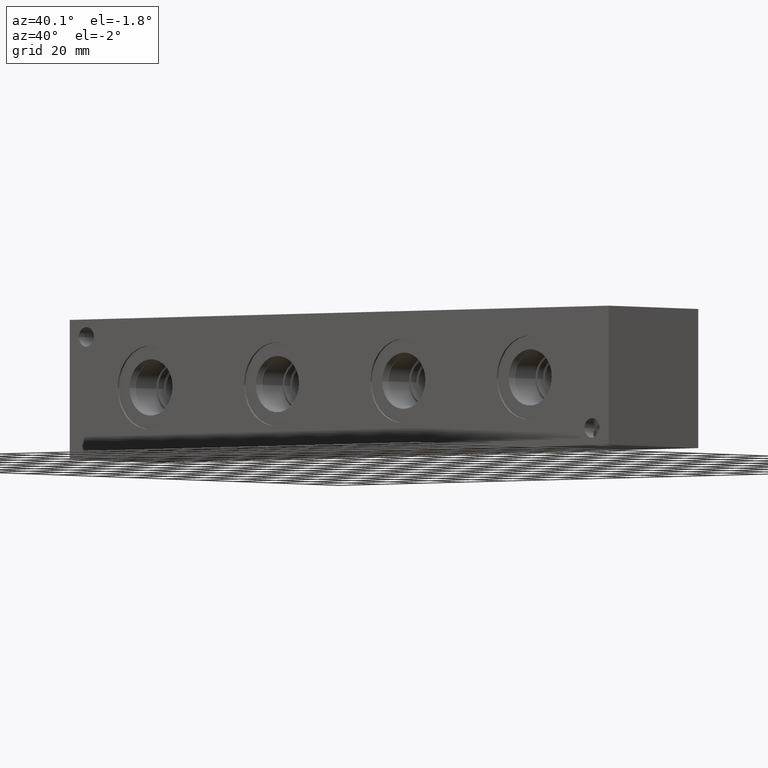
[diagram: clean part render]
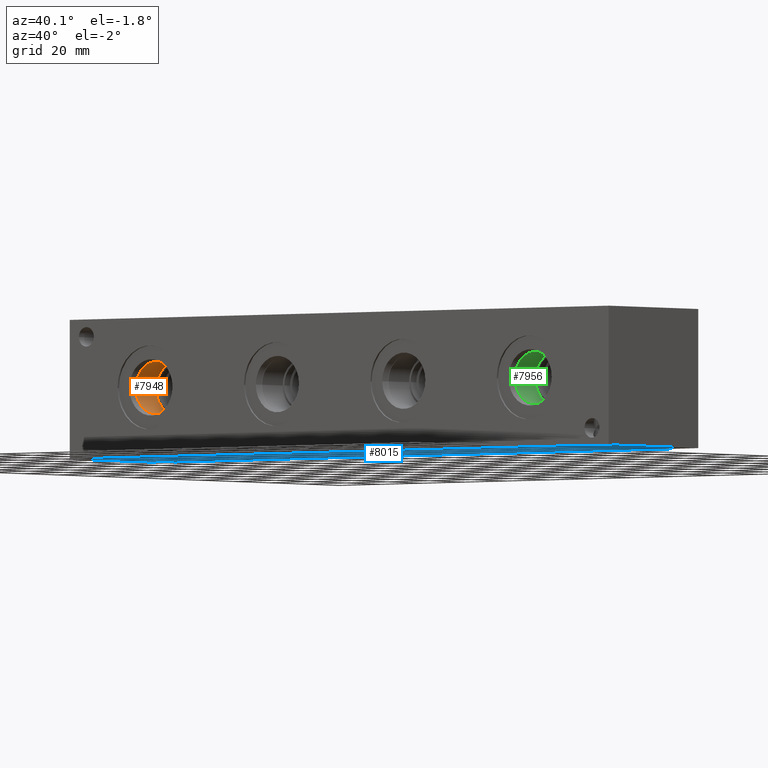
[diagram: same view with three faces highlighted in distinct colors, each labeled with its STEP entity id]
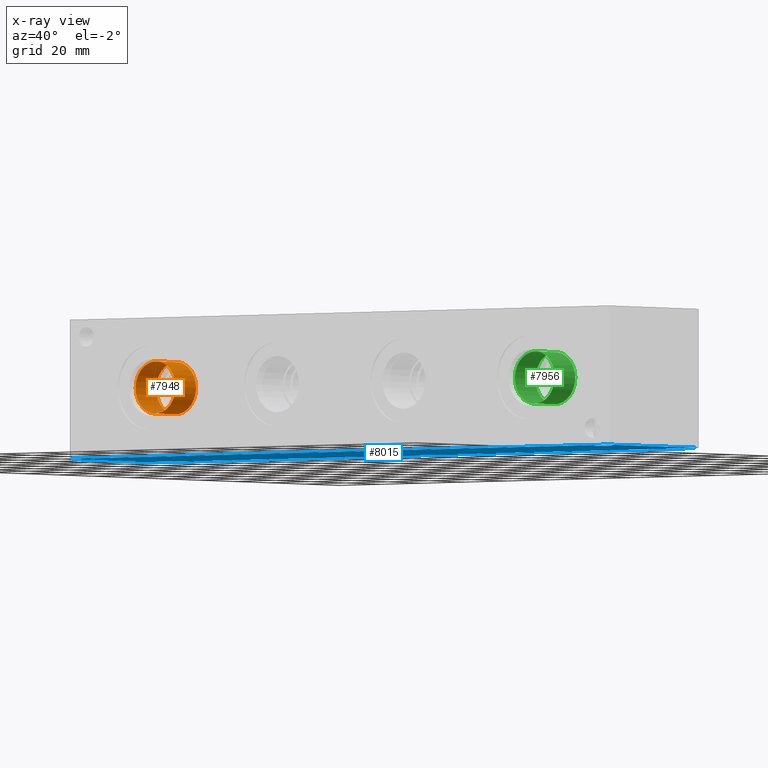
[diagram: x-ray of the same camera — body ghosted, the three highlighted faces saturated]
A machine part, auxiliary view with three faces highlighted in distinct colors.
The next image is the same camera in x-ray (body ghosted, the three faces saturated) — at least one of them is partly hidden behind the body in this view.
Their STEP definitions:

[orange] entity #7948 — the highlighted cylindrical surface (bore or boss wall) has radius 9.525 mm, axis along (0, -1, 0).
#79=CYLINDRICAL_SURFACE('',#8341,9.525);
#179=CIRCLE('',#8339,9.525);
#180=CIRCLE('',#8340,9.525);
#181=CIRCLE('',#8342,9.525);
#903=FACE_OUTER_BOUND('',#1361,.T.);
#1361=EDGE_LOOP('',(#6820,#6821,#6822,#6823,#6824));
#2094=LINE('',#13755,#2787);
#2787=VECTOR('',#9780,9.525);
#3735=VERTEX_POINT('',#13748);
#3736=VERTEX_POINT('',#13749);
#3737=VERTEX_POINT('',#13753);
#4791=EDGE_CURVE('',#3735,#3736,#179,.T.);
#4792=EDGE_CURVE('',#3736,#3735,#180,.T.);
#4793=EDGE_CURVE('',#3737,#3737,#181,.T.);
#4794=EDGE_CURVE('',#3737,#3736,#2094,.T.);
#6820=ORIENTED_EDGE('',*,*,#4793,.F.);
#6821=ORIENTED_EDGE('',*,*,#4794,.T.);
#6822=ORIENTED_EDGE('',*,*,#4791,.F.);
#6823=ORIENTED_EDGE('',*,*,#4792,.F.);
#6824=ORIENTED_EDGE('',*,*,#4794,.F.);
#7948=ADVANCED_FACE('',(#903),#79,.F.);
#8339=AXIS2_PLACEMENT_3D('',#13750,#9772,#9773);
#8340=AXIS2_PLACEMENT_3D('',#13751,#9774,#9775);
#8341=AXIS2_PLACEMENT_3D('',#13752,#9776,#9777);
#8342=AXIS2_PLACEMENT_3D('',#13754,#9778,#9779);
#9772=DIRECTION('center_axis',(0.,-1.,0.));
#9773=DIRECTION('ref_axis',(1.,0.,0.));
#9774=DIRECTION('center_axis',(0.,-1.,0.));
#9775=DIRECTION('ref_axis',(1.,0.,0.));
#9776=DIRECTION('center_axis',(0.,-1.,0.));
#9777=DIRECTION('ref_axis',(1.,0.,0.));
#9778=DIRECTION('center_axis',(0.,1.,0.));
#9779=DIRECTION('ref_axis',(1.,0.,0.));
#9780=DIRECTION('',(0.,1.,0.));
#13748=CARTESIAN_POINT('',(47.625,15.0622,25.4));
#13749=CARTESIAN_POINT('',(28.575,15.0622,25.4));
#13750=CARTESIAN_POINT('Origin',(38.1,15.0622,25.4));
#13751=CARTESIAN_POINT('Origin',(38.1,15.0622,25.4));
#13752=CARTESIAN_POINT('Origin',(38.1,7.5311,25.4));
#13753=CARTESIAN_POINT('',(28.575,3.4036,25.4));
#13754=CARTESIAN_POINT('Origin',(38.1,3.4036,25.4));
#13755=CARTESIAN_POINT('',(28.575,7.5311,25.4));

[blue] entity #8015 — the highlighted planar face has unit normal (0, 0, 1).
#268=CIRCLE('',#8499,3.5687);
#269=CIRCLE('',#8501,3.5687);
#330=FACE_BOUND('',#1448,.T.);
#331=FACE_BOUND('',#1449,.T.);
#553=PLANE('',#8507);
#970=FACE_OUTER_BOUND('',#1447,.T.);
#1447=EDGE_LOOP('',(#7173,#7174,#7175,#7176));
#1448=EDGE_LOOP('',(#7177));
#1449=EDGE_LOOP('',(#7178));
#2135=LINE('',#14060,#2828);
#2138=LINE('',#14065,#2831);
#2140=LINE('',#14069,#2833);
#2142=LINE('',#14072,#2835);
#2828=VECTOR('',#10141,10.);
#2831=VECTOR('',#10146,10.);
#2833=VECTOR('',#10150,10.);
#2835=VECTOR('',#10154,10.);
#3822=VERTEX_POINT('',#14050);
#3823=VERTEX_POINT('',#14054);
#3824=VERTEX_POINT('',#14058);
#3825=VERTEX_POINT('',#14059);
#3826=VERTEX_POINT('',#14064);
#3827=VERTEX_POINT('',#14068);
#4934=EDGE_CURVE('',#3822,#3822,#268,.T.);
#4936=EDGE_CURVE('',#3823,#3823,#269,.T.);
#4937=EDGE_CURVE('',#3824,#3825,#2135,.T.);
#4940=EDGE_CURVE('',#3826,#3824,#2138,.T.);
#4942=EDGE_CURVE('',#3827,#3826,#2140,.T.);
#4944=EDGE_CURVE('',#3825,#3827,#2142,.T.);
#7173=ORIENTED_EDGE('',*,*,#4944,.F.);
#7174=ORIENTED_EDGE('',*,*,#4937,.F.);
#7175=ORIENTED_EDGE('',*,*,#4940,.F.);
#7176=ORIENTED_EDGE('',*,*,#4942,.F.);
#7177=ORIENTED_EDGE('',*,*,#4934,.T.);
#7178=ORIENTED_EDGE('',*,*,#4936,.T.);
#8015=ADVANCED_FACE('',(#970,#330,#331),#553,.F.);
#8499=AXIS2_PLACEMENT_3D('',#14052,#10132,#10133);
#8501=AXIS2_PLACEMENT_3D('',#14056,#10137,#10138);
#8507=AXIS2_PLACEMENT_3D('',#14074,#10157,#10158);
#10132=DIRECTION('center_axis',(0.,0.,1.));
#10133=DIRECTION('ref_axis',(1.,0.,0.));
#10137=DIRECTION('center_axis',(0.,0.,1.));
#10138=DIRECTION('ref_axis',(1.,0.,0.));
#10141=DIRECTION('',(0.,-1.,0.));
#10146=DIRECTION('',(-1.,0.,0.));
#10150=DIRECTION('',(0.,1.,0.));
#10154=DIRECTION('',(1.,0.,0.));
#10157=DIRECTION('center_axis',(0.,0.,1.));
#10158=DIRECTION('ref_axis',(1.,0.,0.));
#14050=CARTESIAN_POINT('',(4.3561,44.45,0.));
#14052=CARTESIAN_POINT('Origin',(7.9248,44.45,0.));
#14054=CARTESIAN_POINT('',(245.6561,6.35,0.));
#14056=CARTESIAN_POINT('Origin',(249.2248,6.35,0.));
#14058=CARTESIAN_POINT('',(0.,50.8,0.));
#14059=CARTESIAN_POINT('',(0.,0.,0.));
#14060=CARTESIAN_POINT('',(0.,50.8,0.));
#14064=CARTESIAN_POINT('',(257.175,50.8,0.));
#14065=CARTESIAN_POINT('',(257.175,50.8,0.));
#14068=CARTESIAN_POINT('',(257.175,0.,0.));
#14069=CARTESIAN_POINT('',(257.175,0.,0.));
#14072=CARTESIAN_POINT('',(0.,0.,0.));
#14074=CARTESIAN_POINT('Origin',(128.5875,25.4,0.));

[green] entity #7956 — the highlighted cylindrical surface (bore or boss wall) has radius 9.525 mm, axis along (0, -1, 0).
#83=CYLINDRICAL_SURFACE('',#8362,9.525);
#136=CIRCLE('',#8257,9.525);
#190=CIRCLE('',#8360,9.525);
#191=CIRCLE('',#8361,9.525);
#911=FACE_OUTER_BOUND('',#1371,.T.);
#1371=EDGE_LOOP('',(#6858,#6859,#6860,#6861,#6862));
#2098=LINE('',#13807,#2791);
#2791=VECTOR('',#9824,9.525);
#3680=VERTEX_POINT('',#13455);
#3748=VERTEX_POINT('',#13802);
#3749=VERTEX_POINT('',#13803);
#4713=EDGE_CURVE('',#3680,#3680,#136,.T.);
#4812=EDGE_CURVE('',#3748,#3749,#190,.T.);
#4813=EDGE_CURVE('',#3749,#3748,#191,.T.);
#4814=EDGE_CURVE('',#3680,#3749,#2098,.T.);
#6858=ORIENTED_EDGE('',*,*,#4713,.T.);
#6859=ORIENTED_EDGE('',*,*,#4814,.T.);
#6860=ORIENTED_EDGE('',*,*,#4812,.F.);
#6861=ORIENTED_EDGE('',*,*,#4813,.F.);
#6862=ORIENTED_EDGE('',*,*,#4814,.F.);
#7956=ADVANCED_FACE('',(#911),#83,.F.);
#8257=AXIS2_PLACEMENT_3D('',#13457,#9597,#9598);
#8360=AXIS2_PLACEMENT_3D('',#13804,#9818,#9819);
#8361=AXIS2_PLACEMENT_3D('',#13805,#9820,#9821);
#8362=AXIS2_PLACEMENT_3D('',#13806,#9822,#9823);
#9597=DIRECTION('center_axis',(0.,-1.,0.));
#9598=DIRECTION('ref_axis',(1.,0.,0.));
#9818=DIRECTION('center_axis',(0.,-1.,0.));
#9819=DIRECTION('ref_axis',(1.,0.,0.));
#9820=DIRECTION('center_axis',(0.,-1.,0.));
#9821=DIRECTION('ref_axis',(1.,0.,0.));
#9822=DIRECTION('center_axis',(0.,-1.,0.));
#9823=DIRECTION('ref_axis',(1.,0.,0.));
#9824=DIRECTION('',(0.,1.,0.));
#13455=CARTESIAN_POINT('',(209.55,3.4036,25.4));
#13457=CARTESIAN_POINT('Origin',(219.075,3.4036,25.4));
#13802=CARTESIAN_POINT('',(228.6,15.0622,25.4));
#13803=CARTESIAN_POINT('',(209.55,15.0622,25.4));
#13804=CARTESIAN_POINT('Origin',(219.075,15.0622,25.4));
#13805=CARTESIAN_POINT('Origin',(219.075,15.0622,25.4));
#13806=CARTESIAN_POINT('Origin',(219.075,7.5311,25.4));
#13807=CARTESIAN_POINT('',(209.55,7.5311,25.4));